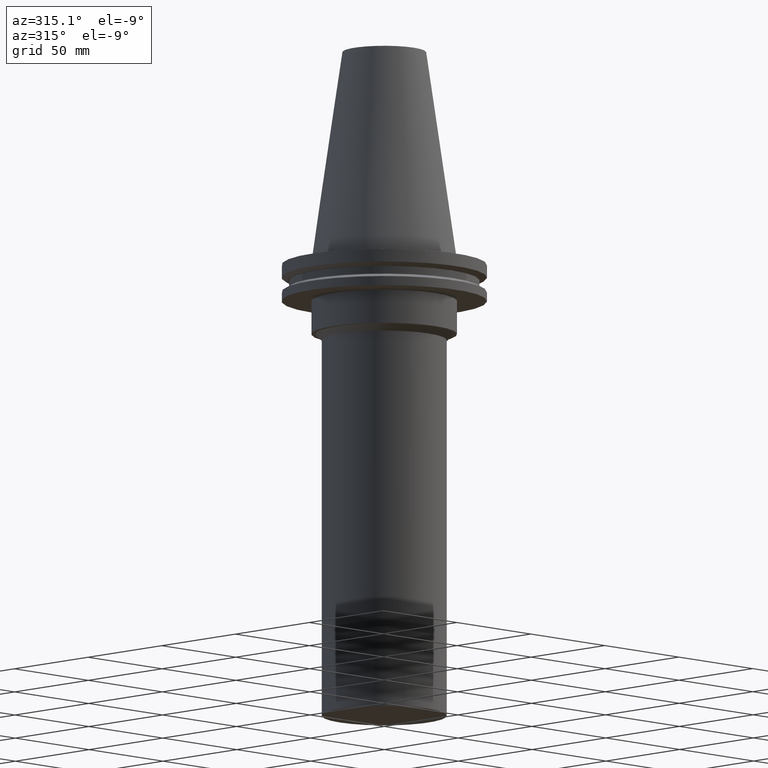
[diagram: clean part render]
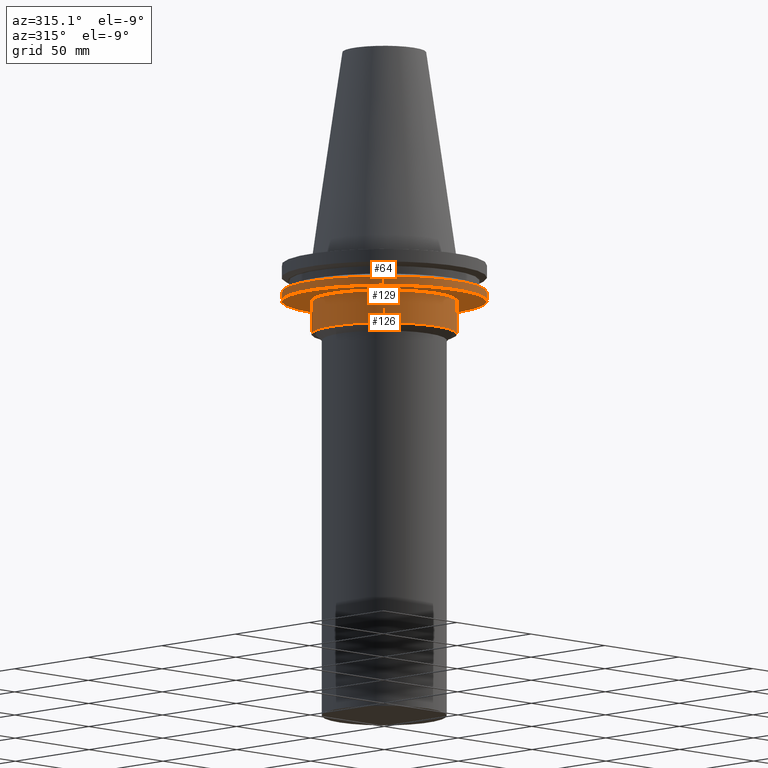
[diagram: same view with one multi-face feature highlighted, each face labeled with its STEP entity id]
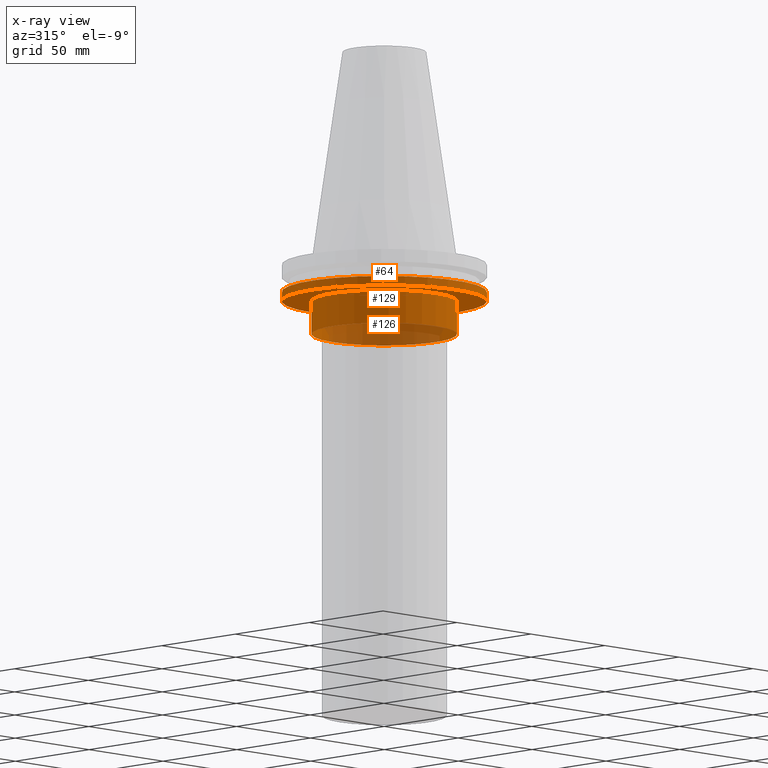
[diagram: x-ray of the same camera — body ghosted, the whole feature saturated]
A machine part, auxiliary view. The highlighted faces form ONE feature: a stepped (counterbored) hole: 2 coaxial cylindrical walls of radii 34.925 -> 49.2125 mm joined by 1 annular planar shoulder face(s). The faces share edges in the B-rep.
The next image is the same camera in x-ray: the body ghosted and the whole hole feature saturated, so the bore chain is visible through the body.
Their STEP definitions:
[1] entity #64 (Cylinder):
#64=ADVANCED_FACE('Unnamed[1]',(#169,#170),#171,.T.);
#105=EDGE_CURVE('Unnamed[1]',#232,#232,#233,.T.);
#109=EDGE_CURVE('Unnamed[1]',#238,#238,#239,.T.);
#169=FACE_BOUND('',#312,.T.);
#170=FACE_BOUND('',#313,.T.);
#171=CYLINDRICAL_SURFACE('',#314,49.2124999999999);
#232=VERTEX_POINT('',#390);
#233=CIRCLE('',#391,49.2124999999999);
#238=VERTEX_POINT('',#398);
#239=CIRCLE('',#399,49.2124999999999);
#312=EDGE_LOOP('',(#477));
#313=EDGE_LOOP('',(#478));
#314=AXIS2_PLACEMENT_3D('',#479,#480,#481);
#390=CARTESIAN_POINT('',(8.96747618675648E-016,49.2124999999999,-14.645));
#391=AXIS2_PLACEMENT_3D('',#547,#548,#549);
#398=CARTESIAN_POINT('',(1.16647607618786E-015,49.2124999999999,-19.0500000000001));
#399=AXIS2_PLACEMENT_3D('',#553,#554,#555);
#477=ORIENTED_EDGE('',*,*,#109,.F.);
#478=ORIENTED_EDGE('',*,*,#105,.T.);
#479=CARTESIAN_POINT('',(1.03161184743175E-015,-1.68099448184509E-014,-16.8475000000001));
#480=DIRECTION('',(6.12323399573677E-017,4.32878246115774E-016,-1.0));
#481=DIRECTION('',(-3.13333006570746E-032,1.0,4.32878246115774E-016));
#547=CARTESIAN_POINT('',(8.9674761867565E-016,-1.77633591555209E-014,-14.645));
#548=DIRECTION('',(6.12323399573677E-017,4.32878246115774E-016,-1.0));
#549=DIRECTION('',(-3.13333006570746E-032,1.0,4.32878246115774E-016));
#553=CARTESIAN_POINT('',(1.16647607618786E-015,-1.58565304813808E-014,-19.0500000000001));
#554=DIRECTION('',(6.12323399573677E-017,4.32878246115774E-016,-1.0));
#555=DIRECTION('',(-3.13333006570746E-032,1.0,4.32878246115774E-016));
[2] entity #126 (Cylinder):
#126=ADVANCED_FACE('Unnamed[1]',(#265,#266),#267,.T.);
#137=EDGE_CURVE('Unnamed[1]',#283,#283,#284,.T.);
#142=EDGE_CURVE('Unnamed[1]',#291,#291,#292,.T.);
#265=FACE_BOUND('',#431,.T.);
#266=FACE_BOUND('',#432,.T.);
#267=CYLINDRICAL_SURFACE('',#433,34.925);
#283=VERTEX_POINT('',#454);
#284=CIRCLE('',#455,34.925);
#291=VERTEX_POINT('',#464);
#292=CIRCLE('',#465,34.925);
#431=EDGE_LOOP('',(#584));
#432=EDGE_LOOP('',(#585));
#433=AXIS2_PLACEMENT_3D('',#586,#587,#588);
#454=CARTESIAN_POINT('',(2.14619351550573E-015,34.925,-35.0499999999999));
#455=AXIS2_PLACEMENT_3D('',#604,#605,#606);
#464=CARTESIAN_POINT('',(1.16647607618786E-015,34.925,-19.0500000000001));
#465=AXIS2_PLACEMENT_3D('',#613,#614,#615);
#584=ORIENTED_EDGE('',*,*,#137,.F.);
#585=ORIENTED_EDGE('',*,*,#142,.T.);
#586=CARTESIAN_POINT('',(1.6563347958468E-015,-1.23935045124546E-014,-27.05));
#587=DIRECTION('',(6.12323399573677E-017,4.32878246115797E-016,-1.0));
#588=DIRECTION('',(-3.13333006570805E-032,1.0,4.32878246115797E-016));
#604=CARTESIAN_POINT('',(2.14619351550573E-015,-8.93047854352831E-015,-35.05));
#605=DIRECTION('',(6.12323399573677E-017,4.32878246115797E-016,-1.0));
#606=DIRECTION('',(-3.13333006570805E-032,1.0,4.32878246115797E-016));
#613=CARTESIAN_POINT('',(1.16647607618786E-015,-1.58565304813808E-014,-19.0500000000001));
#614=DIRECTION('',(6.12323399573677E-017,4.32878246115797E-016,-1.0));
#615=DIRECTION('',(-3.13333006570805E-032,1.0,4.32878246115797E-016));
[3] entity #129 (Plane):
#109=EDGE_CURVE('Unnamed[1]',#238,#238,#239,.T.);
#129=ADVANCED_FACE('Unnamed[1]',(#270,#271),#272,.T.);
#142=EDGE_CURVE('Unnamed[1]',#291,#291,#292,.T.);
#238=VERTEX_POINT('',#398);
#239=CIRCLE('',#399,49.2124999999999);
#270=FACE_BOUND('',#437,.T.);
#271=FACE_OUTER_BOUND('',#438,.T.);
#272=PLANE('',#439);
#291=VERTEX_POINT('',#464);
#292=CIRCLE('',#465,34.925);
#398=CARTESIAN_POINT('',(1.16647607618786E-015,49.2124999999999,-19.0500000000001));
#399=AXIS2_PLACEMENT_3D('',#553,#554,#555);
#437=EDGE_LOOP('',(#590));
#438=EDGE_LOOP('',(#591));
#439=AXIS2_PLACEMENT_3D('',#592,#593,#594);
#464=CARTESIAN_POINT('',(1.16647607618786E-015,34.925,-19.0500000000001));
#465=AXIS2_PLACEMENT_3D('',#613,#614,#615);
#553=CARTESIAN_POINT('',(1.16647607618786E-015,-1.58565304813808E-014,-19.0500000000001));
#554=DIRECTION('',(6.12323399573677E-017,4.32878246115774E-016,-1.0));
#555=DIRECTION('',(-3.13333006570746E-032,1.0,4.32878246115774E-016));
#590=ORIENTED_EDGE('',*,*,#142,.F.);
#591=ORIENTED_EDGE('',*,*,#109,.T.);
#592=CARTESIAN_POINT('',(1.16647607618786E-015,42.06875,-19.0500000000001));
#593=DIRECTION('',(6.12323399573677E-017,1.22464679914735E-016,-1.0));
#594=DIRECTION('',(-1.23259516440783E-032,1.0,1.22464679914735E-016));
#613=CARTESIAN_POINT('',(1.16647607618786E-015,-1.58565304813808E-014,-19.0500000000001));
#614=DIRECTION('',(6.12323399573677E-017,4.32878246115797E-016,-1.0));
#615=DIRECTION('',(-3.13333006570805E-032,1.0,4.32878246115797E-016));